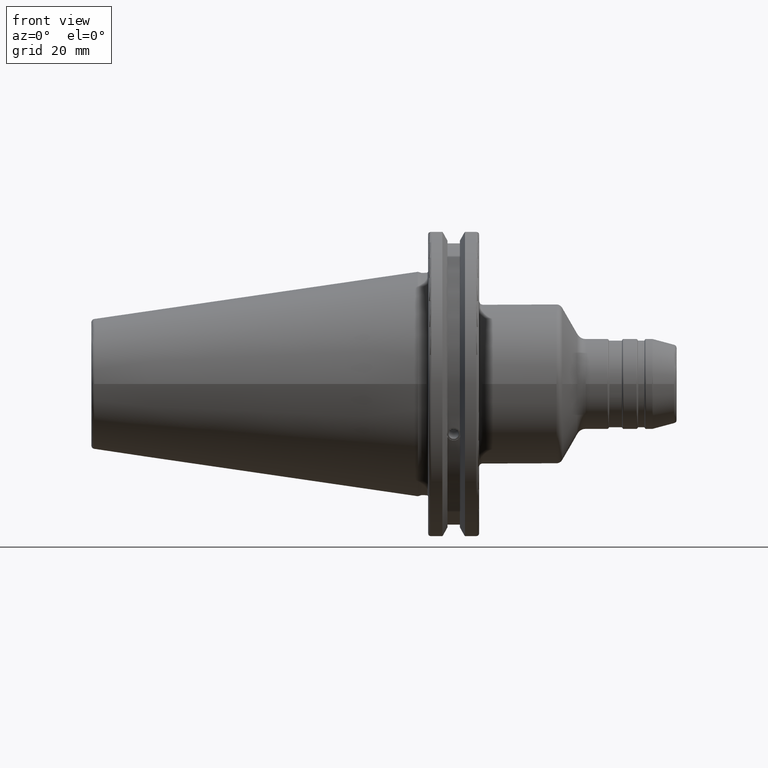
[diagram: clean part render]
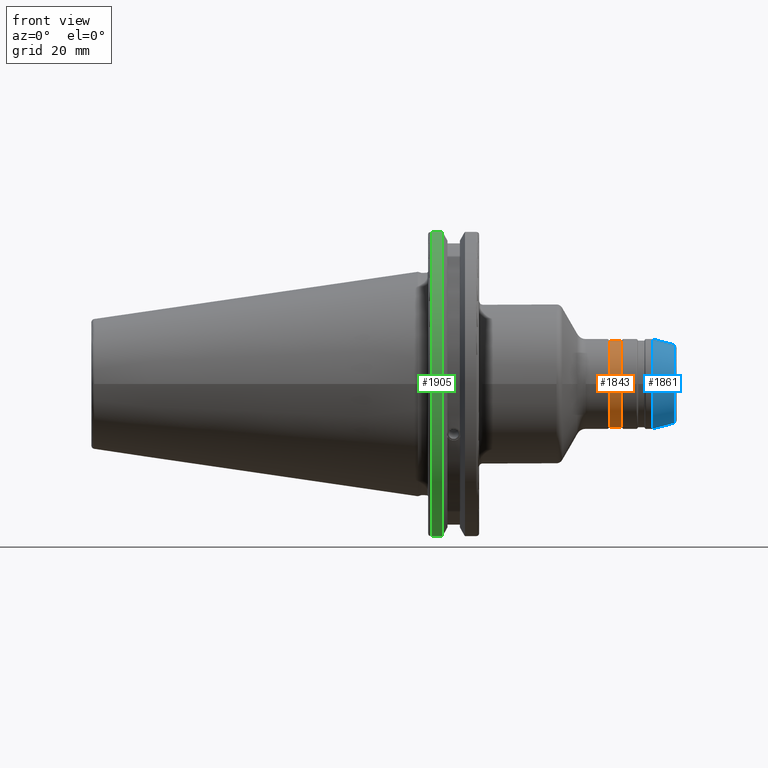
[diagram: same view with three faces highlighted in distinct colors, each labeled with its STEP entity id]
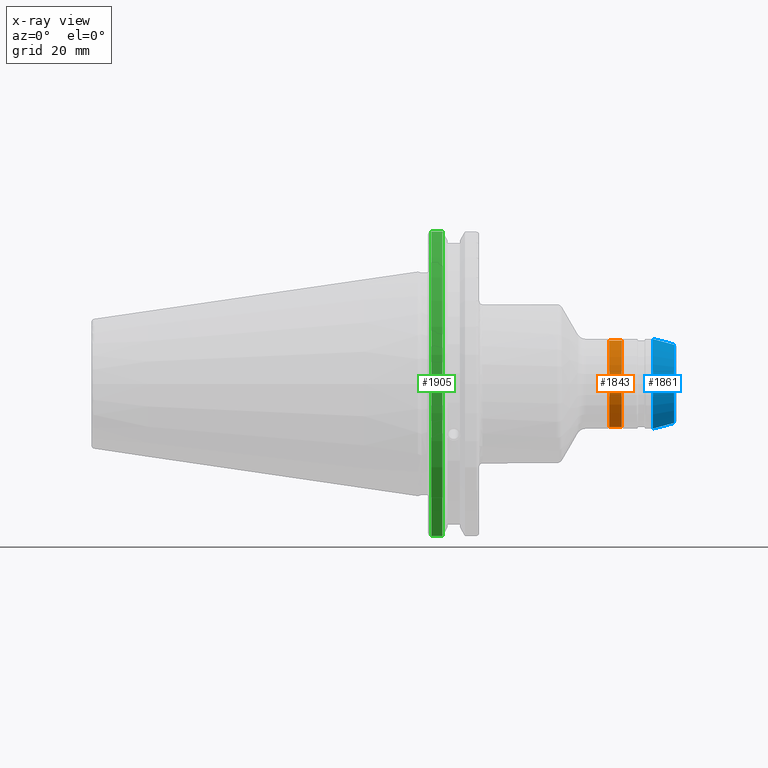
[diagram: x-ray of the same camera — body ghosted, the three highlighted faces saturated]
A machine part, front view with three faces highlighted in distinct colors.
The next image is the same camera in x-ray (body ghosted, the three faces saturated) — at least one of them is partly hidden behind the body in this view.
Their STEP definitions:

[orange] entity #1843 — the highlighted cylindrical surface (bore or boss wall) has radius 13.5 mm, axis along (1, 0, 0).
#177=FACE_OUTER_BOUND('',#287,.T.);
#287=EDGE_LOOP('',(#1283,#1284,#1285,#1286,#1287,#1288));
#410=LINE('',#2933,#514);
#514=VECTOR('',#2288,13.5);
#631=CIRCLE('',#1995,13.5);
#635=CIRCLE('',#1999,13.5);
#636=CIRCLE('',#2001,13.5);
#637=CIRCLE('',#2002,13.5);
#762=VERTEX_POINT('',#2922);
#763=VERTEX_POINT('',#2923);
#766=VERTEX_POINT('',#2932);
#767=VERTEX_POINT('',#2934);
#965=EDGE_CURVE('',#762,#763,#631,.T.);
#969=EDGE_CURVE('',#763,#762,#635,.T.);
#970=EDGE_CURVE('',#762,#766,#410,.T.);
#971=EDGE_CURVE('',#767,#766,#636,.T.);
#972=EDGE_CURVE('',#766,#767,#637,.T.);
#1283=ORIENTED_EDGE('',*,*,#965,.F.);
#1284=ORIENTED_EDGE('',*,*,#970,.T.);
#1285=ORIENTED_EDGE('',*,*,#971,.F.);
#1286=ORIENTED_EDGE('',*,*,#972,.F.);
#1287=ORIENTED_EDGE('',*,*,#970,.F.);
#1288=ORIENTED_EDGE('',*,*,#969,.F.);
#1803=CYLINDRICAL_SURFACE('',#2000,13.5);
#1843=ADVANCED_FACE('',(#177),#1803,.T.);
#1995=AXIS2_PLACEMENT_3D('',#2924,#2276,#2277);
#1999=AXIS2_PLACEMENT_3D('',#2930,#2284,#2285);
#2000=AXIS2_PLACEMENT_3D('',#2931,#2286,#2287);
#2001=AXIS2_PLACEMENT_3D('',#2935,#2289,#2290);
#2002=AXIS2_PLACEMENT_3D('',#2936,#2291,#2292);
#2276=DIRECTION('center_axis',(1.,0.,0.));
#2277=DIRECTION('ref_axis',(0.,-1.,1.83697019872103E-16));
#2284=DIRECTION('center_axis',(1.,0.,0.));
#2285=DIRECTION('ref_axis',(0.,-1.,1.83697019872103E-16));
#2286=DIRECTION('center_axis',(1.,0.,0.));
#2287=DIRECTION('ref_axis',(0.,1.,0.));
#2288=DIRECTION('',(-1.,0.,0.));
#2289=DIRECTION('center_axis',(-1.,0.,0.));
#2290=DIRECTION('ref_axis',(0.,-1.,1.83697019872103E-16));
#2291=DIRECTION('center_axis',(-1.,0.,0.));
#2292=DIRECTION('ref_axis',(0.,-1.,1.83697019872103E-16));
#2922=CARTESIAN_POINT('',(63.3845299461621,-13.5,-1.65327317884893E-15));
#2923=CARTESIAN_POINT('',(63.3845299461621,-1.65327317884893E-15,13.5));
#2924=CARTESIAN_POINT('Origin',(63.3845299461621,0.,0.));
#2930=CARTESIAN_POINT('Origin',(63.3845299461621,0.,0.));
#2931=CARTESIAN_POINT('Origin',(61.5,0.,0.));
#2932=CARTESIAN_POINT('',(59.6154700538379,-13.5,-1.65327317884893E-15));
#2933=CARTESIAN_POINT('',(61.5,-13.5,-1.65327317884893E-15));
#2934=CARTESIAN_POINT('',(59.6154700538379,-1.65327317884893E-15,13.5));
#2935=CARTESIAN_POINT('Origin',(59.6154700538379,0.,0.));
#2936=CARTESIAN_POINT('Origin',(59.6154700538379,0.,0.));

[blue] entity #1861 — the highlighted conical surface has half-angle 15 deg.
#154=CONICAL_SURFACE('',#2060,13.,0.261799387799149);
#195=FACE_OUTER_BOUND('',#306,.T.);
#306=EDGE_LOOP('',(#1397,#1398,#1399,#1400,#1401,#1402));
#428=LINE('',#3056,#532);
#532=VECTOR('',#2428,13.);
#675=CIRCLE('',#2057,13.9659258262891);
#676=CIRCLE('',#2058,13.9659258262891);
#678=CIRCLE('',#2061,12.1985988383101);
#679=CIRCLE('',#2062,12.1985988383101);
#807=VERTEX_POINT('',#3047);
#808=VERTEX_POINT('',#3048);
#809=VERTEX_POINT('',#3053);
#810=VERTEX_POINT('',#3054);
#1027=EDGE_CURVE('',#807,#808,#675,.T.);
#1028=EDGE_CURVE('',#808,#807,#676,.T.);
#1030=EDGE_CURVE('',#809,#810,#678,.T.);
#1031=EDGE_CURVE('',#809,#808,#428,.T.);
#1032=EDGE_CURVE('',#810,#809,#679,.T.);
#1397=ORIENTED_EDGE('',*,*,#1030,.F.);
#1398=ORIENTED_EDGE('',*,*,#1031,.T.);
#1399=ORIENTED_EDGE('',*,*,#1027,.F.);
#1400=ORIENTED_EDGE('',*,*,#1028,.F.);
#1401=ORIENTED_EDGE('',*,*,#1031,.F.);
#1402=ORIENTED_EDGE('',*,*,#1032,.F.);
#1861=ADVANCED_FACE('',(#195),#154,.T.);
#2057=AXIS2_PLACEMENT_3D('',#3049,#2418,#2419);
#2058=AXIS2_PLACEMENT_3D('',#3050,#2420,#2421);
#2060=AXIS2_PLACEMENT_3D('',#3052,#2424,#2425);
#2061=AXIS2_PLACEMENT_3D('',#3055,#2426,#2427);
#2062=AXIS2_PLACEMENT_3D('',#3057,#2429,#2430);
#2418=DIRECTION('center_axis',(-1.,0.,0.));
#2419=DIRECTION('ref_axis',(0.,-1.,3.06161699786838E-17));
#2420=DIRECTION('center_axis',(-1.,0.,0.));
#2421=DIRECTION('ref_axis',(0.,-1.,3.06161699786838E-17));
#2424=DIRECTION('center_axis',(-1.,0.,0.));
#2425=DIRECTION('ref_axis',(0.,1.,0.));
#2426=DIRECTION('center_axis',(1.,0.,0.));
#2427=DIRECTION('ref_axis',(0.,-1.,3.06161699786838E-17));
#2428=DIRECTION('',(-0.965925826289068,-0.25881904510252,-3.16961915143176E-17));
#2429=DIRECTION('center_axis',(1.,0.,0.));
#2430=DIRECTION('ref_axis',(0.,-1.,3.06161699786838E-17));
#3047=CARTESIAN_POINT('',(73.1630649323774,-1.71033263602943E-15,13.9659258262891));
#3048=CARTESIAN_POINT('',(73.1630649323774,-13.9659258262891,-1.71033263602943E-15));
#3049=CARTESIAN_POINT('Origin',(73.1630649323774,0.,-2.13791579503678E-15));
#3050=CARTESIAN_POINT('Origin',(73.1630649323774,0.,-2.13791579503678E-15));
#3052=CARTESIAN_POINT('Origin',(76.7679491924311,0.,0.));
#3053=CARTESIAN_POINT('',(79.7588190451025,-12.1985988383101,-1.49389750214191E-15));
#3054=CARTESIAN_POINT('',(79.7588190451025,-1.49389750214191E-15,12.1985988383101));
#3055=CARTESIAN_POINT('Origin',(79.7588190451025,0.,-1.86737187767739E-15));
#3056=CARTESIAN_POINT('',(76.7679491924311,-13.,-1.59204083889156E-15));
#3057=CARTESIAN_POINT('Origin',(79.7588190451025,0.,-1.86737187767739E-15));

[green] entity #1905 — the highlighted cylindrical surface (partial cylindrical patch) has radius 49.2125 mm, axis along (1, 0, 0).
#239=FACE_OUTER_BOUND('',#364,.T.);
#364=EDGE_LOOP('',(#1643,#1644,#1645,#1646));
#486=LINE('',#3721,#590);
#487=LINE('',#3727,#591);
#590=VECTOR('',#2658,10.);
#591=VECTOR('',#2661,10.);
#719=CIRCLE('',#2146,49.2125);
#720=CIRCLE('',#2149,49.2125);
#912=VERTEX_POINT('',#3700);
#913=VERTEX_POINT('',#3709);
#914=VERTEX_POINT('',#3720);
#915=VERTEX_POINT('',#3726);
#1172=EDGE_CURVE('',#912,#913,#719,.T.);
#1174=EDGE_CURVE('',#913,#914,#486,.T.);
#1176=EDGE_CURVE('',#915,#912,#487,.T.);
#1177=EDGE_CURVE('',#914,#915,#720,.T.);
#1643=ORIENTED_EDGE('',*,*,#1172,.F.);
#1644=ORIENTED_EDGE('',*,*,#1176,.F.);
#1645=ORIENTED_EDGE('',*,*,#1177,.F.);
#1646=ORIENTED_EDGE('',*,*,#1174,.F.);
#1824=CYLINDRICAL_SURFACE('',#2148,49.2125);
#1905=ADVANCED_FACE('',(#239),#1824,.T.);
#2146=AXIS2_PLACEMENT_3D('',#3710,#2654,#2655);
#2148=AXIS2_PLACEMENT_3D('',#3725,#2659,#2660);
#2149=AXIS2_PLACEMENT_3D('',#3728,#2662,#2663);
#2654=DIRECTION('center_axis',(-1.,0.,0.));
#2655=DIRECTION('ref_axis',(0.,-1.,1.60812264967664E-16));
#2658=DIRECTION('',(1.,0.,0.));
#2659=DIRECTION('center_axis',(1.,0.,0.));
#2660=DIRECTION('ref_axis',(0.,-1.,1.22464679914735E-16));
#2661=DIRECTION('',(-1.,0.,0.));
#2662=DIRECTION('center_axis',(1.,0.,0.));
#2663=DIRECTION('ref_axis',(0.,0.,-1.));
#3700=CARTESIAN_POINT('',(4.175,-13.4317035994433,-47.3440544806494));
#3709=CARTESIAN_POINT('',(4.175,-13.4317035994433,47.3440544806494));
#3710=CARTESIAN_POINT('Origin',(4.175,0.,0.));
#3720=CARTESIAN_POINT('',(7.60799096595127,-13.4317035994433,47.3440544806494));
#3721=CARTESIAN_POINT('',(5.39149548297564,-13.4317035994433,47.3440544806494));
#3725=CARTESIAN_POINT('Origin',(5.39149548297564,0.,0.));
#3726=CARTESIAN_POINT('',(7.60799096595127,-13.4317035994433,-47.3440544806494));
#3727=CARTESIAN_POINT('',(5.39149548297564,-13.4317035994433,-47.3440544806494));
#3728=CARTESIAN_POINT('Origin',(7.60799096595127,0.,0.));